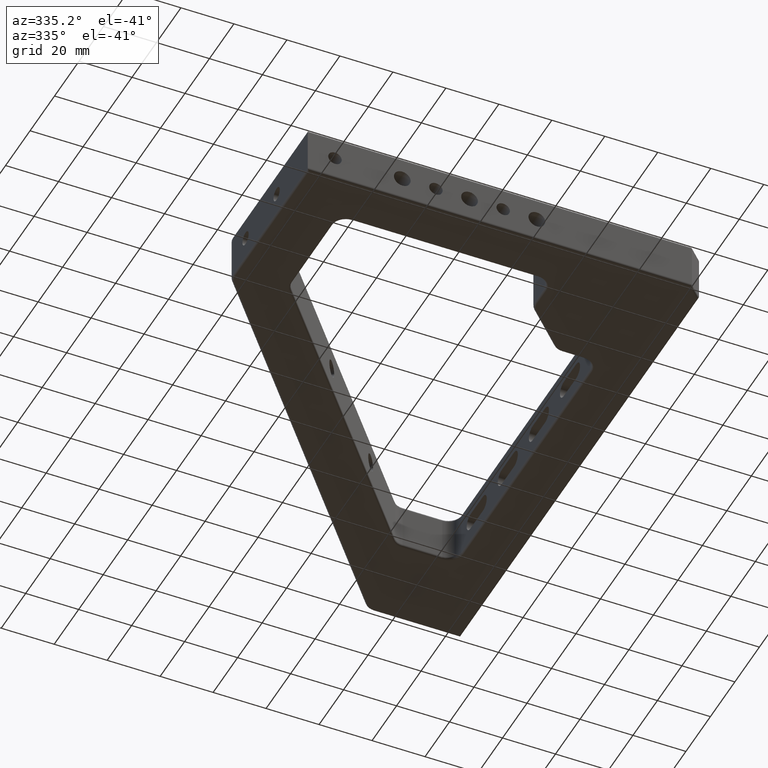
[diagram: clean part render]
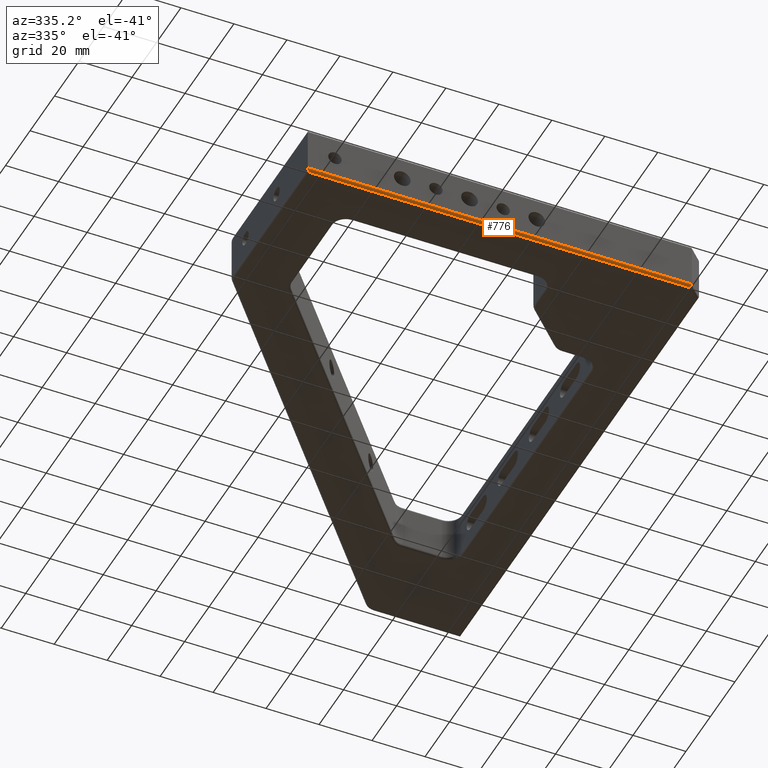
[diagram: same view with one face highlighted and labeled with its STEP entity id]
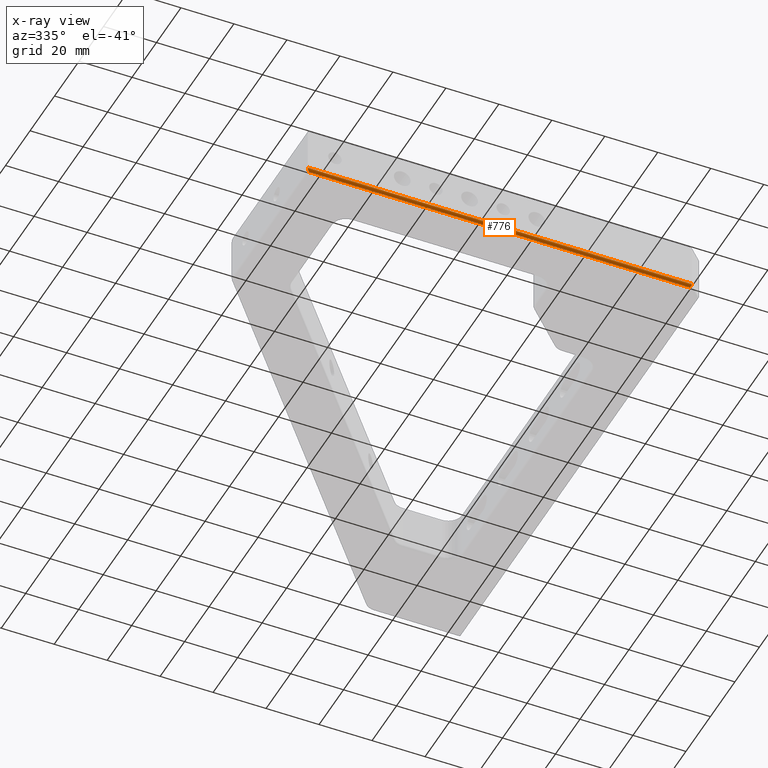
[diagram: x-ray of the same camera — body ghosted, the highlighted face saturated]
A machine part, auxiliary view. The second image highlights one B-rep face of the part: STEP entity #776.
The next image is the same camera in x-ray: the body ghosted, the highlighted face saturated — about 0% of this face is hidden behind the body in this view.
In plain terms, the highlighted cylindrical surface (edge-blend (fillet) strip) has radius 1 mm, axis along (1, 0, 0).
Its self-contained STEP definition (entity closure, byte-faithful):
#24 = FACE_OUTER_BOUND ( 'NONE', #561, .T. ) ;
#188 = DIRECTION ( 'NONE',  ( 1.000000000000000000, -0.0000000000000000000, 0.0000000000000000000 ) ) ;
#200 = CARTESIAN_POINT ( 'NONE',  ( 2.168404344971008600E-016, 6.505213034913025600E-016, 0.4142135623730962600 ) ) ;
#286 = ORIENTED_EDGE ( 'NONE', *, *, #2048, .T. ) ;
#363 = VERTEX_POINT ( 'NONE', #4620 ) ;
#523 = DIRECTION ( 'NONE',  ( 0.0000000000000000000, 0.0000000000000000000, -1.000000000000000000 ) ) ;
#535 = AXIS2_PLACEMENT_3D ( 'NONE', #1946, #882, #523 ) ;
#559 = VERTEX_POINT ( 'NONE', #1795 ) ;
#561 = EDGE_LOOP ( 'NONE', ( #3239, #893, #286, #1159 ) ) ;
#668 = CARTESIAN_POINT ( 'NONE',  ( 145.0000000000000000, 0.0000000000000000000, 1.000000000000000900 ) ) ;
#713 = LINE ( 'NONE', #3048, #1443 ) ;
#776 = ADVANCED_FACE ( 'NONE', ( #24 ), #1821, .T. ) ;
#843 = VERTEX_POINT ( 'NONE', #2372 ) ;
#882 = DIRECTION ( 'NONE',  ( 1.000000000000000000, -0.0000000000000000000, 0.0000000000000000000 ) ) ;
#893 = ORIENTED_EDGE ( 'NONE', *, *, #1921, .F. ) ;
#920 = CARTESIAN_POINT ( 'NONE',  ( 0.4142135623730950300, 0.4142135623730955300, 1.250141964889997800E-015 ) ) ;
#932 = CARTESIAN_POINT ( 'NONE',  ( -0.0000000000000000000, 1.000000000000000000, 0.0000000000000000000 ) ) ;
#1159 = ORIENTED_EDGE ( 'NONE', *, *, #3129, .F. ) ;
#1443 = VECTOR ( 'NONE', #188, 1000.000000000000000 ) ;
#1795 = CARTESIAN_POINT ( 'NONE',  ( 0.0000000000000000000, 0.0000000000000000000, 1.000000000000000900 ) ) ;
#1821 = CYLINDRICAL_SURFACE ( 'NONE', #535, 1.000000000000000000 ) ;
#1890 = EDGE_CURVE ( 'NONE', #559, #363, #4468, .T. ) ;
#1921 = EDGE_CURVE ( 'NONE', #843, #363, #4239, .T. ) ;
#1946 = CARTESIAN_POINT ( 'NONE',  ( 0.0000000000000000000, 1.000000000000000000, 1.000000000000000900 ) ) ;
#2018 = DIRECTION ( 'NONE',  ( -1.000000000000000000, -0.0000000000000000000, -0.0000000000000000000 ) ) ;
#2048 = EDGE_CURVE ( 'NONE', #843, #2312, #3611, .T. ) ;
#2312 = VERTEX_POINT ( 'NONE', #4052 ) ;
#2372 = CARTESIAN_POINT ( 'NONE',  ( 144.5857864376268900, 0.9999999999999943400, 0.0000000000000000000 ) ) ;
#2450 = CARTESIAN_POINT ( 'NONE',  ( 144.8284271247461800, 0.4142135623730979200, -2.275340716145517400E-015 ) ) ;
#2709 = CARTESIAN_POINT ( 'NONE',  ( 0.0000000000000000000, 0.0000000000000000000, 1.000000000000000900 ) ) ;
#2817 = CARTESIAN_POINT ( 'NONE',  ( 145.0000000000000300, 4.336808689942017200E-016, 0.4142135623730934800 ) ) ;
#3048 = CARTESIAN_POINT ( 'NONE',  ( 0.0000000000000000000, 0.0000000000000000000, 1.000000000000000900 ) ) ;
#3129 = EDGE_CURVE ( 'NONE', #559, #2312, #713, .T. ) ;
#3239 = ORIENTED_EDGE ( 'NONE', *, *, #1890, .T. ) ;
#3272 = VECTOR ( 'NONE', #2018, 1000.000000000000000 ) ;
#3429 = CARTESIAN_POINT ( 'NONE',  ( 1.000000000000000000, 1.000000000000000000, 0.0000000000000000000 ) ) ;
#3515 = CARTESIAN_POINT ( 'NONE',  ( 144.5857864376268900, 0.9999999999999943400, 0.0000000000000000000 ) ) ;
#3611 =( BOUNDED_CURVE ( )  B_SPLINE_CURVE ( 3, ( #3515, #2450, #2817, #668 ),
 .UNSPECIFIED., .F., .T. ) 
 B_SPLINE_CURVE_WITH_KNOTS ( ( 4, 4 ),
 ( 4.712388980384685200, 6.283185307179586200 ),
 .UNSPECIFIED. ) 
 CURVE ( )  GEOMETRIC_REPRESENTATION_ITEM ( )  RATIONAL_B_SPLINE_CURVE ( ( 1.000000000000000000, 0.8047378541243640500, 0.8047378541243640500, 1.000000000000000000 ) ) 
 REPRESENTATION_ITEM ( '' )  );
#4052 = CARTESIAN_POINT ( 'NONE',  ( 145.0000000000000000, 0.0000000000000000000, 1.000000000000000900 ) ) ;
#4239 = LINE ( 'NONE', #932, #3272 ) ;
#4468 =( BOUNDED_CURVE ( )  B_SPLINE_CURVE ( 3, ( #2709, #200, #920, #3429 ),
 .UNSPECIFIED., .F., .T. ) 
 B_SPLINE_CURVE_WITH_KNOTS ( ( 4, 4 ),
 ( 0.0000000000000000000, 1.570796326794896300 ),
 .UNSPECIFIED. ) 
 CURVE ( )  GEOMETRIC_REPRESENTATION_ITEM ( )  RATIONAL_B_SPLINE_CURVE ( ( 1.000000000000000000, 0.8047378541243650500, 0.8047378541243650500, 1.000000000000000000 ) ) 
 REPRESENTATION_ITEM ( '' )  );
#4620 = CARTESIAN_POINT ( 'NONE',  ( 1.000000000000000000, 1.000000000000000000, 0.0000000000000000000 ) ) ;